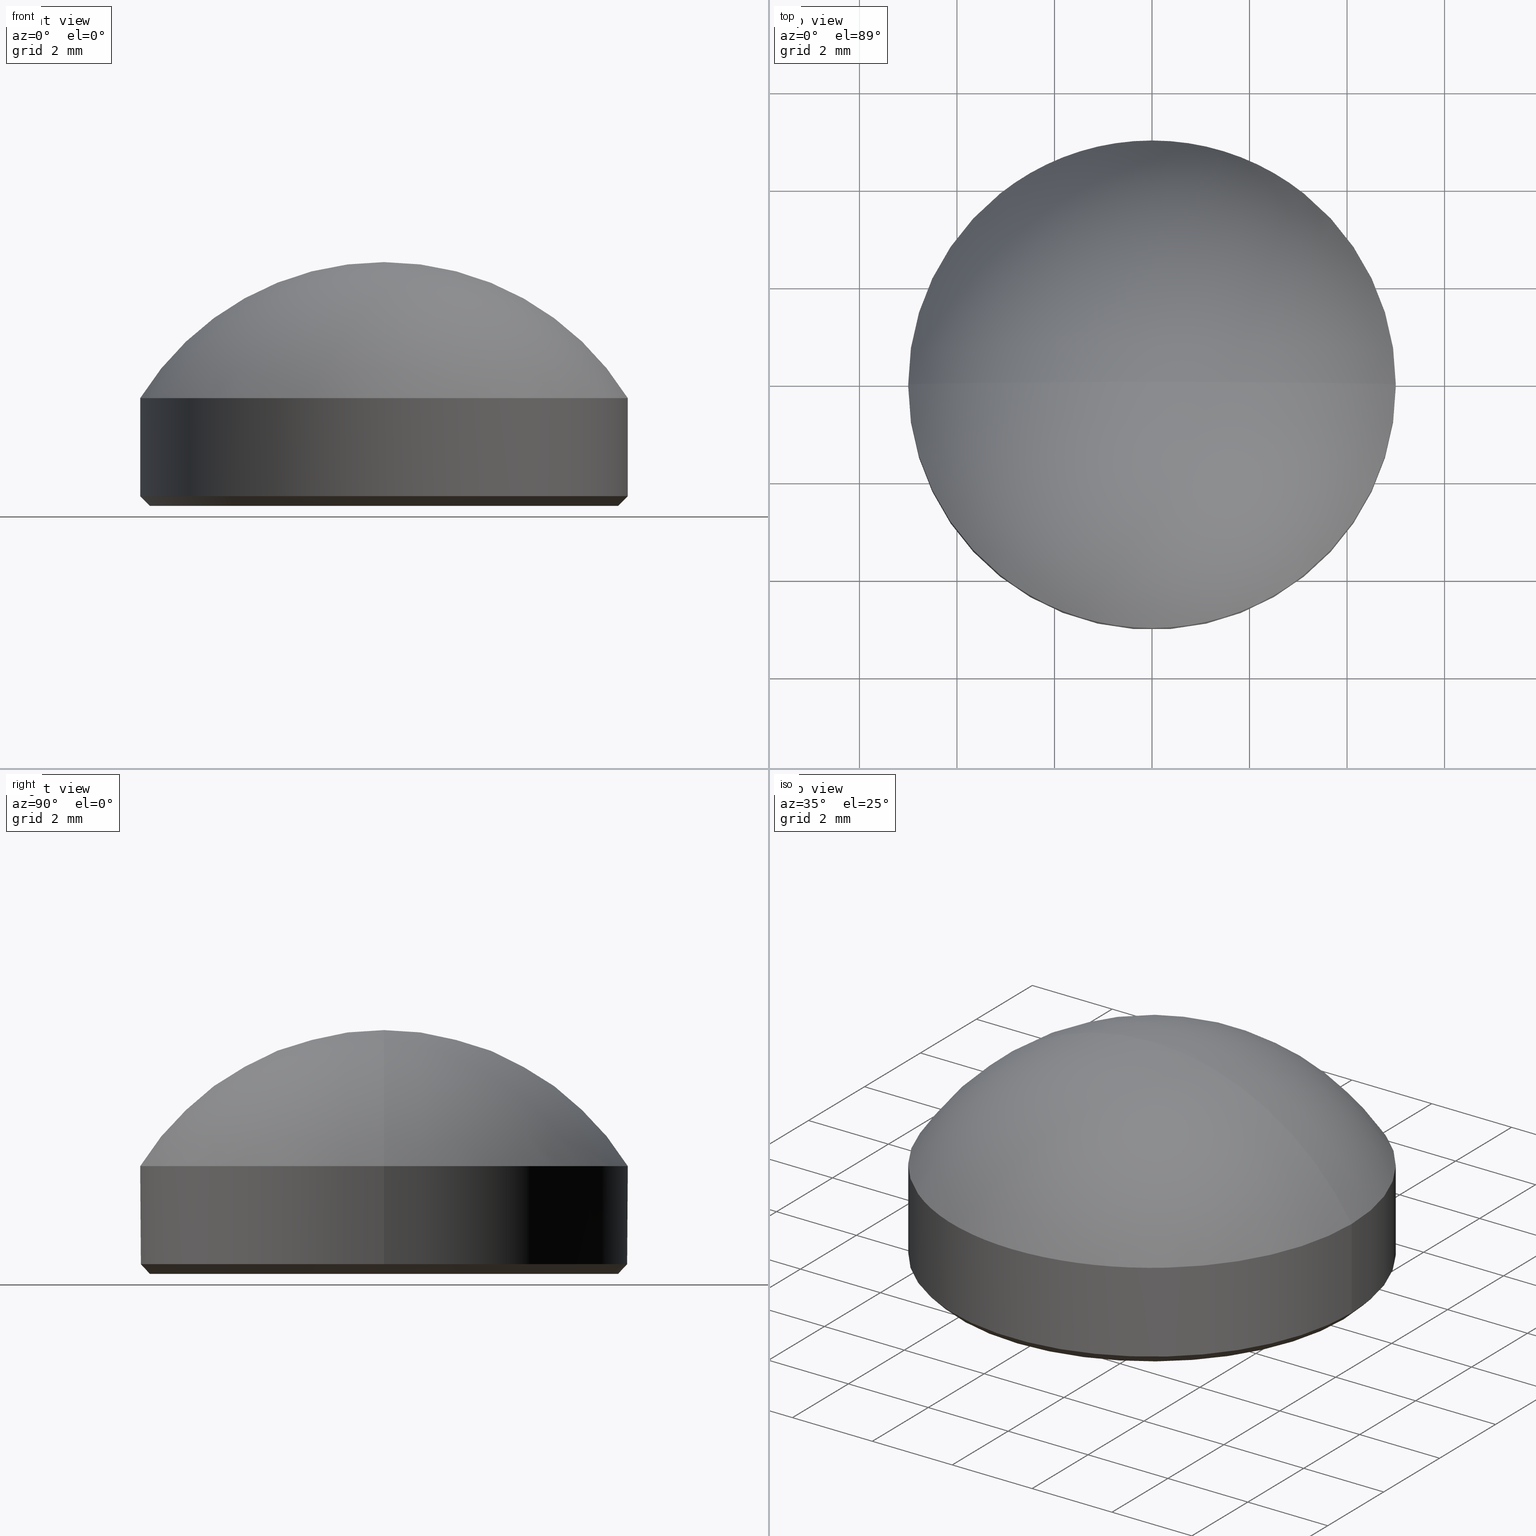
[diagram: canonical four-view strip — front | top / right | iso, engineering-drawing reading convention]
A machine part, canonical four-view strip (front | top / right | iso — engineering-drawing reading convention). The complete STEP part file that produces these views, byte-faithful:
ISO-10303-21;
HEADER;
FILE_DESCRIPTION (( 'STEP AP214' ),
    '1' );
FILE_NAME ('GLA11-010-7.5-NIR.STEP',
    '2024-08-09T08:25:16',
    ( 'Windows User' ),
    ( 'P R C' ),
    'SwSTEP 2.0',
    'SolidWorks 2022',
    '' );
FILE_SCHEMA (( 'AUTOMOTIVE_DESIGN' ));
ENDSEC;

DATA;
#1 = ORIENTED_EDGE ( 'NONE', *, *, #149, .F. ) ;
#2 = FACE_OUTER_BOUND ( 'NONE', #82, .T. ) ;
#3 = CONICAL_SURFACE ( 'NONE', #128, 5.000000000000000000, 0.7853981633974504994 ) ;
#4 = PRODUCT ( 'GLA11-010-7.5-NIR', 'GLA11-010-7.5-NIR', '', ( #174 ) ) ;
#5 = LINE ( 'NONE', #79, #148 ) ;
#6 = EDGE_CURVE ( 'NONE', #87, #150, #80, .T. ) ;
#7 = DIRECTION ( 'NONE',  ( 1.000000000000000000, 0.000000000000000000, 0.000000000000000000 ) ) ;
#8 = APPLICATION_CONTEXT ( 'automotive_design' ) ;
#9 = CARTESIAN_POINT ( 'NONE',  ( -5.000000000000000000, 0.000000000000000000, 2.209999999999999964 ) ) ;
#10 = AXIS2_PLACEMENT_3D ( 'NONE', #205, #157, #11 ) ;
#11 = DIRECTION ( 'NONE',  ( 0.000000000000000000, 0.000000000000000000, 1.000000000000000000 ) ) ;
#12 = SURFACE_STYLE_FILL_AREA ( #176 ) ;
#13 = MECHANICAL_DESIGN_GEOMETRIC_PRESENTATION_REPRESENTATION (  '', ( #170 ), #200 ) ;
#14 = ORIENTED_EDGE ( 'NONE', *, *, #6, .T. ) ;
#15 = UNCERTAINTY_MEASURE_WITH_UNIT (LENGTH_MEASURE( 1.000000000000000082E-05 ), #152, 'distance_accuracy_value', 'NONE');
#16 = ADVANCED_FACE ( 'NONE', ( #34 ), #146, .T. ) ;
#17 = DIRECTION ( 'NONE',  ( -0.000000000000000000, -1.000000000000000000, 0.000000000000000000 ) ) ;
#18 = SURFACE_STYLE_FILL_AREA ( #131 ) ;
#19 = CARTESIAN_POINT ( 'NONE',  ( 0.000000000000000000, 0.000000000000000000, 0.1999999999999987899 ) ) ;
#20 = AXIS2_PLACEMENT_3D ( 'NONE', #84, #36, #214 ) ;
#21 = ADVANCED_FACE ( 'NONE', ( #2 ), #85, .T. ) ;
#22 = MANIFOLD_SOLID_BREP ( '����1', #182 ) ;
#23 = CYLINDRICAL_SURFACE ( 'NONE', #95, 5.000000000000000000 ) ;
#24 =( NAMED_UNIT ( * ) SI_UNIT ( $, .STERADIAN. ) SOLID_ANGLE_UNIT ( ) );
#25 = AXIS2_PLACEMENT_3D ( 'NONE', #154, #139, #93 ) ;
#26 =( NAMED_UNIT ( * ) PLANE_ANGLE_UNIT ( ) SI_UNIT ( $, .RADIAN. ) );
#27 = DIRECTION ( 'NONE',  ( -0.000000000000000000, -0.000000000000000000, -1.000000000000000000 ) ) ;
#28 = PRODUCT_DEFINITION_FORMATION_WITH_SPECIFIED_SOURCE ( '�κ�', '', #4, .NOT_KNOWN. ) ;
#29 = FACE_OUTER_BOUND ( 'NONE', #160, .T. ) ;
#30 = APPLICATION_PROTOCOL_DEFINITION ( 'draft international standard', 'automotive_design', 1998, #8 ) ;
#31 = ADVANCED_FACE ( 'NONE', ( #204 ), #52, .F. ) ;
#32 = ORIENTED_EDGE ( 'NONE', *, *, #127, .F. ) ;
#33 = STYLED_ITEM ( 'NONE', ( #130 ), #22 ) ;
#34 = FACE_OUTER_BOUND ( 'NONE', #213, .T. ) ;
#35 = VERTEX_POINT ( 'NONE', #55 ) ;
#36 = DIRECTION ( 'NONE',  ( -0.000000000000000000, -1.000000000000000000, 0.000000000000000000 ) ) ;
#37 = EDGE_CURVE ( 'NONE', #48, #35, #49, .T. ) ;
#38 = CIRCLE ( 'NONE', #10, 5.875286738351255700 ) ;
#39 = CARTESIAN_POINT ( 'NONE',  ( 0.000000000000000000, 0.000000000000000000, 0.1999999999999987899 ) ) ;
#40 = LINE ( 'NONE', #73, #143 ) ;
#41 = CARTESIAN_POINT ( 'NONE',  ( 0.000000000000000000, 0.000000000000000000, 2.209999999999999964 ) ) ;
#42 = DIRECTION ( 'NONE',  ( 1.000000000000000000, -1.224646799147353207E-16, 0.000000000000000000 ) ) ;
#43 = EDGE_CURVE ( 'NONE', #201, #66, #216, .T. ) ;
#44 = CARTESIAN_POINT ( 'NONE',  ( 5.000000000000000000, 6.123233995736766282E-16, 2.209999999999999964 ) ) ;
#45 = COLOUR_RGB ( '',1.000000000000000000, 1.000000000000000000, 1.000000000000000000 ) ;
#46 =( NAMED_UNIT ( * ) SI_UNIT ( $, .STERADIAN. ) SOLID_ANGLE_UNIT ( ) );
#47 =( LENGTH_UNIT ( ) NAMED_UNIT ( * ) SI_UNIT ( .MILLI., .METRE. ) );
#48 = VERTEX_POINT ( 'NONE', #184 ) ;
#49 = CIRCLE ( 'NONE', #74, 4.800000000000000711 ) ;
#50 = ORIENTED_EDGE ( 'NONE', *, *, #149, .T. ) ;
#51 = DIRECTION ( 'NONE',  ( 1.000000000000000000, 0.000000000000000000, -0.000000000000000000 ) ) ;
#52 = PLANE ( 'NONE',  #104 ) ;
#53 = ORIENTED_EDGE ( 'NONE', *, *, #78, .T. ) ;
#54 =( NAMED_UNIT ( * ) PLANE_ANGLE_UNIT ( ) SI_UNIT ( $, .RADIAN. ) );
#55 = CARTESIAN_POINT ( 'NONE',  ( -4.800000000000000711, 6.000769315822031726E-16, 0.000000000000000000 ) ) ;
#56 = LINE ( 'NONE', #9, #129 ) ;
#57 = DIRECTION ( 'NONE',  ( -1.224646799147353207E-16, -1.000000000000000000, -0.000000000000000000 ) ) ;
#58 = CIRCLE ( 'NONE', #153, 5.875286738351255700 ) ;
#59 = FACE_OUTER_BOUND ( 'NONE', #163, .T. ) ;
#60 = EDGE_CURVE ( 'NONE', #66, #87, #56, .T. ) ;
#61 = CARTESIAN_POINT ( 'NONE',  ( -3.597575549097378931E-16, 0.000000000000000000, 5.000000000000000888 ) ) ;
#62 = SHAPE_DEFINITION_REPRESENTATION ( #124, #112 ) ;
#63 = CIRCLE ( 'NONE', #123, 4.800000000000000711 ) ;
#64 = ORIENTED_EDGE ( 'NONE', *, *, #37, .T. ) ;
#65 = APPLICATION_CONTEXT ( 'automotive_design' ) ;
#66 = VERTEX_POINT ( 'NONE', #77 ) ;
#67 = VERTEX_POINT ( 'NONE', #61 ) ;
#68 = CARTESIAN_POINT ( 'NONE',  ( 0.000000000000000000, 0.000000000000000000, 0.000000000000000000 ) ) ;
#69 = ORIENTED_EDGE ( 'NONE', *, *, #60, .F. ) ;
#70 = EDGE_CURVE ( 'NONE', #35, #48, #63, .T. ) ;
#71 = DIRECTION ( 'NONE',  ( 0.000000000000000000, 0.000000000000000000, 1.000000000000000000 ) ) ;
#72 = DIRECTION ( 'NONE',  ( -0.000000000000000000, -0.000000000000000000, 1.000000000000000000 ) ) ;
#73 = CARTESIAN_POINT ( 'NONE',  ( 5.000000000000000000, 6.123233995736766282E-16, 2.209999999999999964 ) ) ;
#74 = AXIS2_PLACEMENT_3D ( 'NONE', #68, #116, #215 ) ;
#75 = CARTESIAN_POINT ( 'NONE',  ( 0.000000000000000000, 0.000000000000000000, 2.209999999999999964 ) ) ;
#76 = DIRECTION ( 'NONE',  ( -1.000000000000000000, 0.000000000000000000, 0.000000000000000000 ) ) ;
#77 = CARTESIAN_POINT ( 'NONE',  ( -5.000000000000000000, 0.000000000000000000, 2.209999999999999964 ) ) ;
#78 = EDGE_CURVE ( 'NONE', #66, #201, #168, .T. ) ;
#79 = CARTESIAN_POINT ( 'NONE',  ( 5.000000000000000000, 0.000000000000000000, 0.1999999999999987899 ) ) ;
#80 = CIRCLE ( 'NONE', #194, 5.000000000000000000 ) ;
#81 = ORIENTED_EDGE ( 'NONE', *, *, #70, .T. ) ;
#82 = EDGE_LOOP ( 'NONE', ( #98, #196, #118 ) ) ;
#83 = EDGE_CURVE ( 'NONE', #150, #87, #197, .T. ) ;
#84 = CARTESIAN_POINT ( 'NONE',  ( 0.000000000000000000, 0.000000000000000000, -0.8752867383512550337 ) ) ;
#85 = SPHERICAL_SURFACE ( 'NONE', #20, 5.875286738351255700 ) ;
#86 = ORIENTED_EDGE ( 'NONE', *, *, #60, .T. ) ;
#87 = VERTEX_POINT ( 'NONE', #191 ) ;
#88 = AXIS2_PLACEMENT_3D ( 'NONE', #75, #110, #76 ) ;
#89 =( LENGTH_UNIT ( ) NAMED_UNIT ( * ) SI_UNIT ( .MILLI., .METRE. ) );
#90 = CARTESIAN_POINT ( 'NONE',  ( 0.000000000000000000, 0.000000000000000000, 0.000000000000000000 ) ) ;
#91 = DIRECTION ( 'NONE',  ( -0.000000000000000000, -0.000000000000000000, -1.000000000000000000 ) ) ;
#92 = FACE_OUTER_BOUND ( 'NONE', #113, .T. ) ;
#93 = DIRECTION ( 'NONE',  ( 1.000000000000000000, 0.000000000000000000, 0.000000000000000000 ) ) ;
#94 = SURFACE_STYLE_USAGE ( .BOTH. , #111 ) ;
#95 = AXIS2_PLACEMENT_3D ( 'NONE', #41, #121, #171 ) ;
#96 = EDGE_LOOP ( 'NONE', ( #101, #114, #86, #14 ) ) ;
#97 = EDGE_CURVE ( 'NONE', #66, #67, #38, .T. ) ;
#98 = ORIENTED_EDGE ( 'NONE', *, *, #119, .F. ) ;
#99 = AXIS2_PLACEMENT_3D ( 'NONE', #108, #188, #136 ) ;
#100 = SURFACE_SIDE_STYLE ('',( #18 ) ) ;
#101 = ORIENTED_EDGE ( 'NONE', *, *, #164, .F. ) ;
#102 = ORIENTED_EDGE ( 'NONE', *, *, #83, .T. ) ;
#103 =( NAMED_UNIT ( * ) SI_UNIT ( $, .STERADIAN. ) SOLID_ANGLE_UNIT ( ) );
#104 = AXIS2_PLACEMENT_3D ( 'NONE', #147, #145, #51 ) ;
#105 = UNCERTAINTY_MEASURE_WITH_UNIT (LENGTH_MEASURE( 1.000000000000000082E-05 ), #89, 'distance_accuracy_value', 'NONE');
#106 = AXIS2_PLACEMENT_3D ( 'NONE', #203, #17, #134 ) ;
#107 = ADVANCED_FACE ( 'NONE', ( #92 ), #3, .T. ) ;
#108 = CARTESIAN_POINT ( 'NONE',  ( 0.000000000000000000, 0.000000000000000000, 0.1999999999999987899 ) ) ;
#109 = CARTESIAN_POINT ( 'NONE',  ( -5.000000000000000000, 6.123233995736766282E-16, 0.1999999999999987899 ) ) ;
#110 = DIRECTION ( 'NONE',  ( -0.000000000000000000, -0.000000000000000000, -1.000000000000000000 ) ) ;
#111 = SURFACE_SIDE_STYLE ('',( #12 ) ) ;
#112 = ADVANCED_BREP_SHAPE_REPRESENTATION ( 'GLA11-010-7.5-NIR', ( #22, #162 ), #132 ) ;
#113 = EDGE_LOOP ( 'NONE', ( #1, #183, #115, #166 ) ) ;
#114 = ORIENTED_EDGE ( 'NONE', *, *, #78, .F. ) ;
#115 = ORIENTED_EDGE ( 'NONE', *, *, #127, .T. ) ;
#116 = DIRECTION ( 'NONE',  ( -0.000000000000000000, -0.000000000000000000, -1.000000000000000000 ) ) ;
#117 = DIRECTION ( 'NONE',  ( 1.000000000000000000, 0.000000000000000000, 0.000000000000000000 ) ) ;
#118 = ORIENTED_EDGE ( 'NONE', *, *, #97, .T. ) ;
#119 = EDGE_CURVE ( 'NONE', #201, #67, #58, .T. ) ;
#120 = ORIENTED_EDGE ( 'NONE', *, *, #164, .T. ) ;
#121 = DIRECTION ( 'NONE',  ( -0.000000000000000000, -0.000000000000000000, -1.000000000000000000 ) ) ;
#122 = CYLINDRICAL_SURFACE ( 'NONE', #88, 5.000000000000000000 ) ;
#123 = AXIS2_PLACEMENT_3D ( 'NONE', #90, #138, #141 ) ;
#124 = PRODUCT_DEFINITION_SHAPE ( 'NONE', 'NONE',  #158 ) ;
#125 = DIRECTION ( 'NONE',  ( -0.000000000000000000, -0.000000000000000000, 1.000000000000000000 ) ) ;
#126 = CARTESIAN_POINT ( 'NONE',  ( 0.000000000000000000, 0.000000000000000000, -0.8752867383512550337 ) ) ;
#127 = EDGE_CURVE ( 'NONE', #48, #150, #5, .T. ) ;
#128 = AXIS2_PLACEMENT_3D ( 'NONE', #206, #156, #7 ) ;
#129 = VECTOR ( 'NONE', #91, 1000.000000000000000 ) ;
#130 = PRESENTATION_STYLE_ASSIGNMENT (( #167 ) ) ;
#131 = FILL_AREA_STYLE ('',( #151 ) ) ;
#132 =( GEOMETRIC_REPRESENTATION_CONTEXT ( 3 ) GLOBAL_UNCERTAINTY_ASSIGNED_CONTEXT ( ( #15 ) ) GLOBAL_UNIT_ASSIGNED_CONTEXT ( ( #152, #26, #24 ) ) REPRESENTATION_CONTEXT ( 'NONE', 'WORKASPACE' ) );
#133 = DIRECTION ( 'NONE',  ( 1.000000000000000000, 0.000000000000000000, 0.000000000000000000 ) ) ;
#134 = DIRECTION ( 'NONE',  ( -1.000000000000000000, 0.000000000000000000, 0.000000000000000000 ) ) ;
#135 = ADVANCED_FACE ( 'NONE', ( #173 ), #122, .T. ) ;
#136 = DIRECTION ( 'NONE',  ( 1.000000000000000000, 0.000000000000000000, 0.000000000000000000 ) ) ;
#137 = LINE ( 'NONE', #109, #210 ) ;
#138 = DIRECTION ( 'NONE',  ( -0.000000000000000000, -0.000000000000000000, -1.000000000000000000 ) ) ;
#139 = DIRECTION ( 'NONE',  ( 0.000000000000000000, 0.000000000000000000, 1.000000000000000000 ) ) ;
#140 = PRESENTATION_LAYER_ASSIGNMENT (  '', '', ( #33 ) ) ;
#141 = DIRECTION ( 'NONE',  ( 1.000000000000000000, 0.000000000000000000, 0.000000000000000000 ) ) ;
#142 = CARTESIAN_POINT ( 'NONE',  ( 0.000000000000000000, 0.000000000000000000, 0.000000000000000000 ) ) ;
#143 = VECTOR ( 'NONE', #27, 1000.000000000000000 ) ;
#144 = DIRECTION ( 'NONE',  ( 0.000000000000000000, 0.000000000000000000, 1.000000000000000000 ) ) ;
#145 = DIRECTION ( 'NONE',  ( 0.000000000000000000, 0.000000000000000000, 1.000000000000000000 ) ) ;
#146 = SPHERICAL_SURFACE ( 'NONE', #106, 5.875286738351255700 ) ;
#147 = CARTESIAN_POINT ( 'NONE',  ( 0.000000000000000000, 0.000000000000000000, 0.000000000000000000 ) ) ;
#148 = VECTOR ( 'NONE', #187, 1000.000000000000114 ) ;
#149 = EDGE_CURVE ( 'NONE', #35, #87, #137, .T. ) ;
#150 = VERTEX_POINT ( 'NONE', #190 ) ;
#151 = FILL_AREA_STYLE_COLOUR ( '', #45 ) ;
#152 =( LENGTH_UNIT ( ) NAMED_UNIT ( * ) SI_UNIT ( .MILLI., .METRE. ) );
#153 = AXIS2_PLACEMENT_3D ( 'NONE', #126, #57, #42 ) ;
#154 = CARTESIAN_POINT ( 'NONE',  ( 0.000000000000000000, 0.000000000000000000, 2.209999999999999964 ) ) ;
#155 = UNCERTAINTY_MEASURE_WITH_UNIT (LENGTH_MEASURE( 1.000000000000000082E-05 ), #47, 'distance_accuracy_value', 'NONE');
#156 = DIRECTION ( 'NONE',  ( -0.000000000000000000, -0.000000000000000000, 1.000000000000000000 ) ) ;
#157 = DIRECTION ( 'NONE',  ( 0.000000000000000000, 1.000000000000000000, 0.000000000000000000 ) ) ;
#158 = PRODUCT_DEFINITION ( 'δ֪', '', #28, #175 ) ;
#159 =( NAMED_UNIT ( * ) PLANE_ANGLE_UNIT ( ) SI_UNIT ( $, .RADIAN. ) );
#160 = EDGE_LOOP ( 'NONE', ( #180, #50, #199, #32 ) ) ;
#161 = COLOUR_RGB ( '',1.000000000000000000, 1.000000000000000000, 1.000000000000000000 ) ;
#162 = AXIS2_PLACEMENT_3D ( 'NONE', #142, #144, #211 ) ;
#163 = EDGE_LOOP ( 'NONE', ( #169, #120, #102, #69 ) ) ;
#164 = EDGE_CURVE ( 'NONE', #201, #150, #40, .T. ) ;
#165 =( GEOMETRIC_REPRESENTATION_CONTEXT ( 3 ) GLOBAL_UNCERTAINTY_ASSIGNED_CONTEXT ( ( #105 ) ) GLOBAL_UNIT_ASSIGNED_CONTEXT ( ( #89, #54, #103 ) ) REPRESENTATION_CONTEXT ( 'NONE', 'WORKASPACE' ) );
#166 = ORIENTED_EDGE ( 'NONE', *, *, #6, .F. ) ;
#167 = SURFACE_STYLE_USAGE ( .BOTH. , #100 ) ;
#168 = CIRCLE ( 'NONE', #25, 5.000000000000000000 ) ;
#169 = ORIENTED_EDGE ( 'NONE', *, *, #43, .F. ) ;
#170 = STYLED_ITEM ( 'NONE', ( #209 ), #112 ) ;
#171 = DIRECTION ( 'NONE',  ( -1.000000000000000000, 0.000000000000000000, 0.000000000000000000 ) ) ;
#172 = ADVANCED_FACE ( 'NONE', ( #59 ), #23, .T. ) ;
#173 = FACE_OUTER_BOUND ( 'NONE', #96, .T. ) ;
#174 = PRODUCT_CONTEXT ( 'NONE', #65, 'mechanical' ) ;
#175 = PRODUCT_DEFINITION_CONTEXT ( 'detailed design', #8, 'design' ) ;
#176 = FILL_AREA_STYLE ('',( #193 ) ) ;
#177 = AXIS2_PLACEMENT_3D ( 'NONE', #39, #125, #207 ) ;
#178 = PRESENTATION_LAYER_ASSIGNMENT (  '', '', ( #170 ) ) ;
#179 = PRODUCT_RELATED_PRODUCT_CATEGORY ( 'part', '', ( #4 ) ) ;
#180 = ORIENTED_EDGE ( 'NONE', *, *, #70, .F. ) ;
#181 = EDGE_LOOP ( 'NONE', ( #64, #81 ) ) ;
#182 = CLOSED_SHELL ( 'NONE', ( #198, #16, #172, #135, #31, #21, #107 ) ) ;
#183 = ORIENTED_EDGE ( 'NONE', *, *, #37, .F. ) ;
#184 = CARTESIAN_POINT ( 'NONE',  ( 4.800000000000000711, 0.000000000000000000, 0.000000000000000000 ) ) ;
#185 = AXIS2_PLACEMENT_3D ( 'NONE', #186, #71, #133 ) ;
#186 = CARTESIAN_POINT ( 'NONE',  ( 0.000000000000000000, 0.000000000000000000, 2.209999999999999964 ) ) ;
#187 = DIRECTION ( 'NONE',  ( 0.7071067811865490160, 0.000000000000000000, 0.7071067811865460184 ) ) ;
#188 = DIRECTION ( 'NONE',  ( -0.000000000000000000, -0.000000000000000000, 1.000000000000000000 ) ) ;
#189 = MECHANICAL_DESIGN_GEOMETRIC_PRESENTATION_REPRESENTATION (  '', ( #33 ), #165 ) ;
#190 = CARTESIAN_POINT ( 'NONE',  ( 5.000000000000000000, 6.123233995736766282E-16, 0.1999999999999987899 ) ) ;
#191 = CARTESIAN_POINT ( 'NONE',  ( -5.000000000000000000, 0.000000000000000000, 0.1999999999999987899 ) ) ;
#192 = DIRECTION ( 'NONE',  ( -0.7071067811865490160, 8.659560562354953812E-17, 0.7071067811865460184 ) ) ;
#193 = FILL_AREA_STYLE_COLOUR ( '', #161 ) ;
#194 = AXIS2_PLACEMENT_3D ( 'NONE', #19, #72, #117 ) ;
#195 = ORIENTED_EDGE ( 'NONE', *, *, #97, .F. ) ;
#196 = ORIENTED_EDGE ( 'NONE', *, *, #43, .T. ) ;
#197 = CIRCLE ( 'NONE', #99, 5.000000000000000000 ) ;
#198 = ADVANCED_FACE ( 'NONE', ( #29 ), #202, .T. ) ;
#199 = ORIENTED_EDGE ( 'NONE', *, *, #83, .F. ) ;
#200 =( GEOMETRIC_REPRESENTATION_CONTEXT ( 3 ) GLOBAL_UNCERTAINTY_ASSIGNED_CONTEXT ( ( #155 ) ) GLOBAL_UNIT_ASSIGNED_CONTEXT ( ( #47, #159, #46 ) ) REPRESENTATION_CONTEXT ( 'NONE', 'WORKASPACE' ) );
#201 = VERTEX_POINT ( 'NONE', #44 ) ;
#202 = CONICAL_SURFACE ( 'NONE', #177, 5.000000000000000000, 0.7853981633974504994 ) ;
#203 = CARTESIAN_POINT ( 'NONE',  ( 0.000000000000000000, 0.000000000000000000, -0.8752867383512550337 ) ) ;
#204 = FACE_OUTER_BOUND ( 'NONE', #181, .T. ) ;
#205 = CARTESIAN_POINT ( 'NONE',  ( 0.000000000000000000, 0.000000000000000000, -0.8752867383512550337 ) ) ;
#206 = CARTESIAN_POINT ( 'NONE',  ( 0.000000000000000000, 0.000000000000000000, 0.1999999999999987899 ) ) ;
#207 = DIRECTION ( 'NONE',  ( 1.000000000000000000, 0.000000000000000000, 0.000000000000000000 ) ) ;
#208 = APPLICATION_PROTOCOL_DEFINITION ( 'draft international standard', 'automotive_design', 1998, #65 ) ;
#209 = PRESENTATION_STYLE_ASSIGNMENT (( #94 ) ) ;
#210 = VECTOR ( 'NONE', #192, 1000.000000000000114 ) ;
#211 = DIRECTION ( 'NONE',  ( 1.000000000000000000, 0.000000000000000000, 0.000000000000000000 ) ) ;
#212 = ORIENTED_EDGE ( 'NONE', *, *, #119, .T. ) ;
#213 = EDGE_LOOP ( 'NONE', ( #53, #212, #195 ) ) ;
#214 = DIRECTION ( 'NONE',  ( -1.000000000000000000, 0.000000000000000000, 0.000000000000000000 ) ) ;
#215 = DIRECTION ( 'NONE',  ( 1.000000000000000000, 0.000000000000000000, 0.000000000000000000 ) ) ;
#216 = CIRCLE ( 'NONE', #185, 5.000000000000000000 ) ;
ENDSEC;
END-ISO-10303-21;
